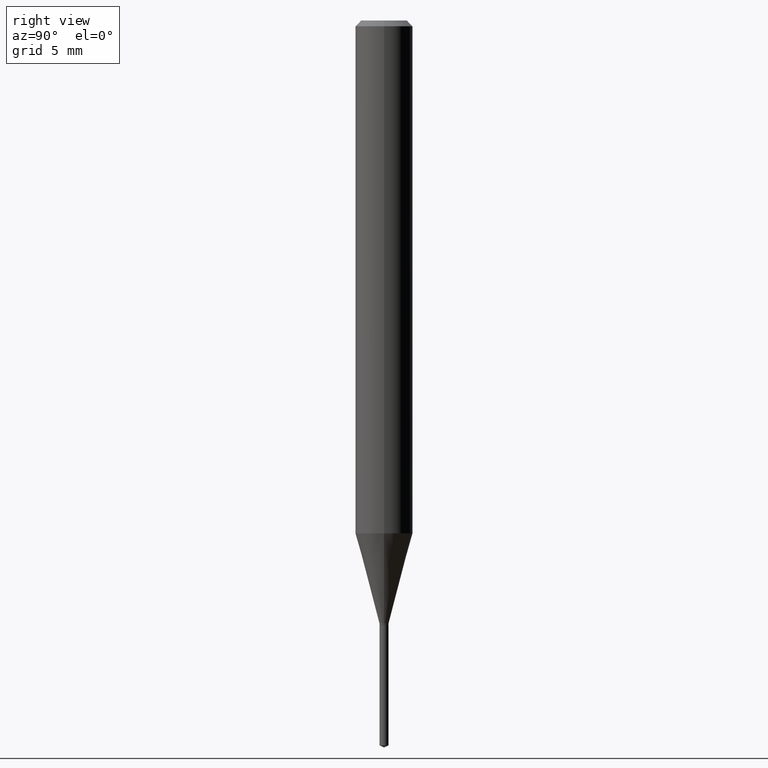
[diagram: clean part render]
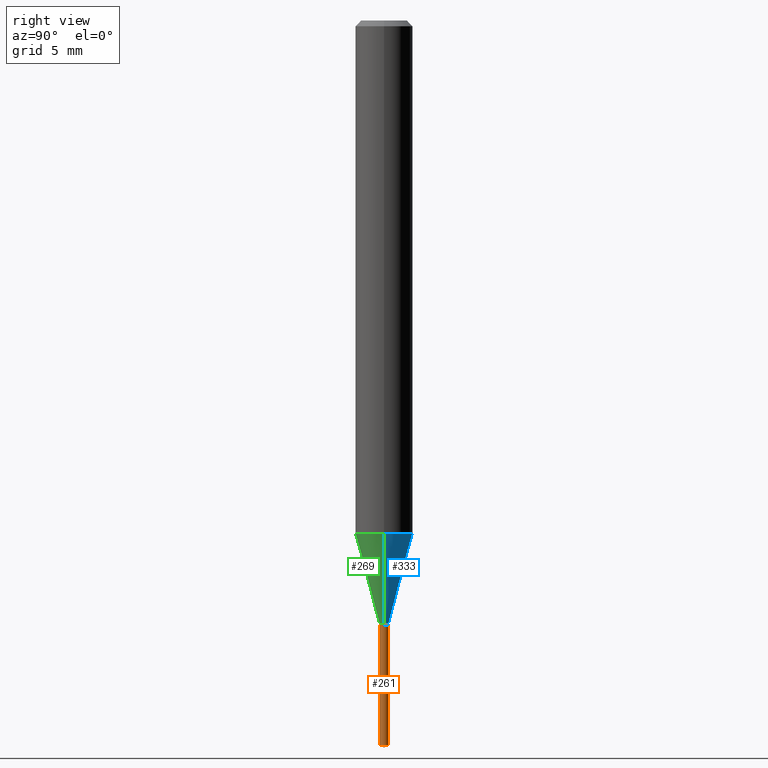
[diagram: same view with three faces highlighted in distinct colors, each labeled with its STEP entity id]
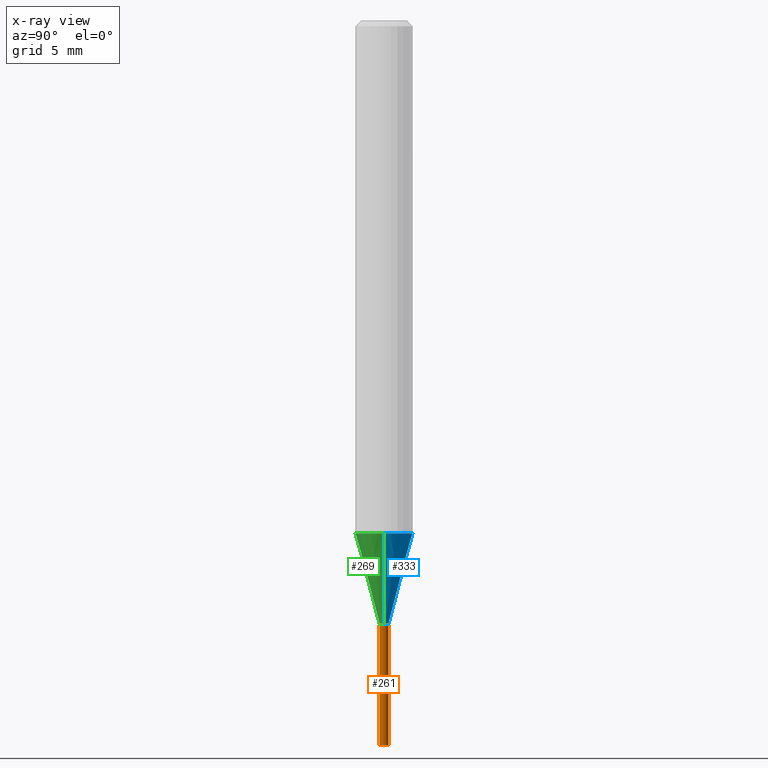
[diagram: x-ray of the same camera — body ghosted, the three highlighted faces saturated]
A machine part, right view with three faces highlighted in distinct colors.
The next image is the same camera in x-ray (body ghosted, the three faces saturated) — at least one of them is partly hidden behind the body in this view.
Their STEP definitions:

[orange] entity #261 — the highlighted cylindrical surface (edge-blend (fillet) strip) has radius 0.235 mm, axis along (-0, 0, 1).
#29 = CARTESIAN_POINT ( 'NONE',  ( -6.459240476856152614E-17, -0.009250000000005217590, -1.491786654162066128 ) ) ;
#48 = VERTEX_POINT ( 'NONE', #79 ) ;
#54 = AXIS2_PLACEMENT_3D ( 'NONE', #396, #140, #134 ) ;
#61 = EDGE_LOOP ( 'NONE', ( #268, #417, #462, #233 ) ) ;
#68 = DIRECTION ( 'NONE',  ( -6.982962677686265133E-15, -1.000000000000000000, 0.000000000000000000 ) ) ;
#71 = CARTESIAN_POINT ( 'NONE',  ( -6.459240476856754120E-17, -0.009250000000004345024, -1.244099999999999984 ) ) ;
#72 = VECTOR ( 'NONE', #168, 39.37007874015748143 ) ;
#79 = CARTESIAN_POINT ( 'NONE',  ( 6.572520305784578573E-17, 0.009249999999995655794, -1.244099999999999984 ) ) ;
#110 = DIRECTION ( 'NONE',  ( -2.433949354103485076E-29, 3.507977849870565923E-15, 1.000000000000000000 ) ) ;
#126 = AXIS2_PLACEMENT_3D ( 'NONE', #258, #110, #68 ) ;
#134 = DIRECTION ( 'NONE',  ( -6.982962677686266711E-15, -1.000000000000000000, 0.000000000000000000 ) ) ;
#140 = DIRECTION ( 'NONE',  ( -2.433949354103485076E-29, 3.507977849870565923E-15, 1.000000000000000000 ) ) ;
#160 = EDGE_CURVE ( 'NONE', #399, #344, #358, .T. ) ;
#164 = CIRCLE ( 'NONE', #343, 0.009249999999999999542 ) ;
#168 = DIRECTION ( 'NONE',  ( -2.433949354103485076E-29, 3.507977849870566318E-15, 1.000000000000000000 ) ) ;
#171 = DIRECTION ( 'NONE',  ( -6.982962677686266711E-15, -1.000000000000000000, 0.000000000000000000 ) ) ;
#213 = VECTOR ( 'NONE', #449, 39.37007874015748143 ) ;
#219 = EDGE_CURVE ( 'NONE', #344, #48, #164, .T. ) ;
#233 = ORIENTED_EDGE ( 'NONE', *, *, #160, .F. ) ;
#258 = CARTESIAN_POINT ( 'NONE',  ( 3.645264513692742757E-29, -5.212631230163837176E-15, -1.491786654162066128 ) ) ;
#261 = ADVANCED_FACE ( 'NONE', ( #320 ), #362, .T. ) ;
#264 = VERTEX_POINT ( 'NONE', #325 ) ;
#268 = ORIENTED_EDGE ( 'NONE', *, *, #394, .T. ) ;
#320 = FACE_OUTER_BOUND ( 'NONE', #61, .T. ) ;
#325 = CARTESIAN_POINT ( 'NONE',  ( 6.572520305784574876E-17, 0.009249999999994791902, -1.491786654162066128 ) ) ;
#343 = AXIS2_PLACEMENT_3D ( 'NONE', #401, #363, #171 ) ;
#344 = VERTEX_POINT ( 'NONE', #71 ) ;
#358 = LINE ( 'NONE', #431, #72 ) ;
#362 = CYLINDRICAL_SURFACE ( 'NONE', #54, 0.009250000000000001277 ) ;
#363 = DIRECTION ( 'NONE',  ( -2.433949354103485076E-29, 3.507977849870565923E-15, 1.000000000000000000 ) ) ;
#369 = EDGE_CURVE ( 'NONE', #264, #48, #370, .T. ) ;
#370 = LINE ( 'NONE', #444, #213 ) ;
#374 = CIRCLE ( 'NONE', #126, 0.009250000000000003011 ) ;
#394 = EDGE_CURVE ( 'NONE', #399, #264, #374, .T. ) ;
#396 = CARTESIAN_POINT ( 'NONE',  ( 3.042407741774928155E-29, -4.343751933654757151E-15, -1.244099999999999984 ) ) ;
#399 = VERTEX_POINT ( 'NONE', #29 ) ;
#401 = CARTESIAN_POINT ( 'NONE',  ( 3.042407741774928155E-29, -4.343751933654757151E-15, -1.244099999999999984 ) ) ;
#417 = ORIENTED_EDGE ( 'NONE', *, *, #369, .T. ) ;
#431 = CARTESIAN_POINT ( 'NONE',  ( -6.459240476856755353E-17, -0.009250000000004346759, -1.244099999999999984 ) ) ;
#444 = CARTESIAN_POINT ( 'NONE',  ( 6.572520305783969671E-17, 0.009249999999995657529, -1.244099999999999984 ) ) ;
#449 = DIRECTION ( 'NONE',  ( -2.433949354103485076E-29, 3.507977849870566318E-15, 1.000000000000000000 ) ) ;
#462 = ORIENTED_EDGE ( 'NONE', *, *, #219, .F. ) ;

[blue] entity #333 — the highlighted conical surface has half-angle 15 deg.
#2 = LINE ( 'NONE', #193, #13 ) ;
#13 = VECTOR ( 'NONE', #376, 39.37007874015748854 ) ;
#16 = ORIENTED_EDGE ( 'NONE', *, *, #22, .F. ) ;
#22 = EDGE_CURVE ( 'NONE', #474, #177, #252, .T. ) ;
#36 = EDGE_CURVE ( 'NONE', #460, #474, #2, .T. ) ;
#46 = CONICAL_SURFACE ( 'NONE', #405, 0.009249999999999999542, 0.2617993877991499074 ) ;
#50 = DIRECTION ( 'NONE',  ( 1.000000000000000000, -6.982962677686264344E-15, 0.000000000000000000 ) ) ;
#82 = VECTOR ( 'NONE', #150, 39.37007874015748854 ) ;
#119 = ORIENTED_EDGE ( 'NONE', *, *, #489, .T. ) ;
#125 = LINE ( 'NONE', #306, #82 ) ;
#131 = CARTESIAN_POINT ( 'NONE',  ( -0.05905000000000013710, -3.265487090077642716E-15, -1.055443869783069699 ) ) ;
#139 = VERTEX_POINT ( 'NONE', #205 ) ;
#150 = DIRECTION ( 'NONE',  ( -0.2588190451025211836, 5.211531920934547886E-15, 0.9659258262890679791 ) ) ;
#172 = AXIS2_PLACEMENT_3D ( 'NONE', #270, #423, #50 ) ;
#177 = VERTEX_POINT ( 'NONE', #131 ) ;
#182 = CIRCLE ( 'NONE', #487, 0.009249999999999999542 ) ;
#193 = CARTESIAN_POINT ( 'NONE',  ( 0.009249999999999999542, -4.398568190674593941E-15, -1.241299999999999848 ) ) ;
#205 = CARTESIAN_POINT ( 'NONE',  ( -0.009249999999999999542, -4.272265786387857456E-15, -1.241299999999999848 ) ) ;
#229 = CARTESIAN_POINT ( 'NONE',  ( 0.05905000000000013710, -4.097406521661357129E-15, -1.055443869783069699 ) ) ;
#252 = CIRCLE ( 'NONE', #172, 0.05905000000000013710 ) ;
#255 = CARTESIAN_POINT ( 'NONE',  ( 3.035560429117610036E-29, -4.333975785905995943E-15, -1.241299999999999848 ) ) ;
#267 = ORIENTED_EDGE ( 'NONE', *, *, #402, .T. ) ;
#270 = CARTESIAN_POINT ( 'NONE',  ( 2.581055060233824275E-29, -3.685062575543982998E-15, -1.055443869783069699 ) ) ;
#274 = EDGE_LOOP ( 'NONE', ( #267, #119, #16, #295 ) ) ;
#295 = ORIENTED_EDGE ( 'NONE', *, *, #36, .F. ) ;
#298 = DIRECTION ( 'NONE',  ( -2.445468806185136597E-29, 3.491481338843145583E-15, 1.000000000000000000 ) ) ;
#306 = CARTESIAN_POINT ( 'NONE',  ( -0.009249999999999999542, -4.268250582848186814E-15, -1.241299999999999848 ) ) ;
#330 = DIRECTION ( 'NONE',  ( 1.000000000000000000, -6.982962677686254089E-15, 0.000000000000000000 ) ) ;
#333 = ADVANCED_FACE ( 'NONE', ( #409 ), #46, .T. ) ;
#334 = DIRECTION ( 'NONE',  ( 1.000000000000000000, -6.982962677686254089E-15, 0.000000000000000000 ) ) ;
#349 = CARTESIAN_POINT ( 'NONE',  ( 0.009249999999999999542, -4.398568190674593941E-15, -1.241299999999999848 ) ) ;
#376 = DIRECTION ( 'NONE',  ( 0.2588190451025211836, 1.565188264969622559E-15, 0.9659258262890679791 ) ) ;
#402 = EDGE_CURVE ( 'NONE', #460, #139, #182, .T. ) ;
#405 = AXIS2_PLACEMENT_3D ( 'NONE', #255, #445, #330 ) ;
#409 = FACE_OUTER_BOUND ( 'NONE', #274, .T. ) ;
#423 = DIRECTION ( 'NONE',  ( -2.445468806185136597E-29, 3.491481338843145583E-15, 1.000000000000000000 ) ) ;
#443 = CARTESIAN_POINT ( 'NONE',  ( 3.035560429117610036E-29, -4.333975785905995943E-15, -1.241299999999999848 ) ) ;
#445 = DIRECTION ( 'NONE',  ( -2.445468806185136597E-29, 3.491481338843145583E-15, 1.000000000000000000 ) ) ;
#460 = VERTEX_POINT ( 'NONE', #349 ) ;
#474 = VERTEX_POINT ( 'NONE', #229 ) ;
#487 = AXIS2_PLACEMENT_3D ( 'NONE', #443, #298, #334 ) ;
#489 = EDGE_CURVE ( 'NONE', #139, #177, #125, .T. ) ;

[green] entity #269 — the highlighted conical surface has half-angle 15 deg.
#2 = LINE ( 'NONE', #193, #13 ) ;
#13 = VECTOR ( 'NONE', #376, 39.37007874015748854 ) ;
#36 = EDGE_CURVE ( 'NONE', #460, #474, #2, .T. ) ;
#41 = DIRECTION ( 'NONE',  ( 1.000000000000000000, -6.982962677686254089E-15, 0.000000000000000000 ) ) ;
#55 = CARTESIAN_POINT ( 'NONE',  ( 3.035560429117610036E-29, -4.333975785905995943E-15, -1.241299999999999848 ) ) ;
#59 = DIRECTION ( 'NONE',  ( -2.445468806185136597E-29, 3.491481338843145583E-15, 1.000000000000000000 ) ) ;
#63 = DIRECTION ( 'NONE',  ( 1.000000000000000000, -6.982962677686264344E-15, 0.000000000000000000 ) ) ;
#67 = CIRCLE ( 'NONE', #335, 0.05905000000000013710 ) ;
#75 = CARTESIAN_POINT ( 'NONE',  ( 3.035560429117610036E-29, -4.333975785905995943E-15, -1.241299999999999848 ) ) ;
#82 = VECTOR ( 'NONE', #150, 39.37007874015748854 ) ;
#84 = ORIENTED_EDGE ( 'NONE', *, *, #36, .T. ) ;
#109 = CIRCLE ( 'NONE', #456, 0.009249999999999999542 ) ;
#123 = ORIENTED_EDGE ( 'NONE', *, *, #135, .F. ) ;
#125 = LINE ( 'NONE', #306, #82 ) ;
#131 = CARTESIAN_POINT ( 'NONE',  ( -0.05905000000000013710, -3.265487090077642716E-15, -1.055443869783069699 ) ) ;
#135 = EDGE_CURVE ( 'NONE', #177, #474, #67, .T. ) ;
#139 = VERTEX_POINT ( 'NONE', #205 ) ;
#150 = DIRECTION ( 'NONE',  ( -0.2588190451025211836, 5.211531920934547886E-15, 0.9659258262890679791 ) ) ;
#169 = ORIENTED_EDGE ( 'NONE', *, *, #459, .T. ) ;
#177 = VERTEX_POINT ( 'NONE', #131 ) ;
#193 = CARTESIAN_POINT ( 'NONE',  ( 0.009249999999999999542, -4.398568190674593941E-15, -1.241299999999999848 ) ) ;
#205 = CARTESIAN_POINT ( 'NONE',  ( -0.009249999999999999542, -4.272265786387857456E-15, -1.241299999999999848 ) ) ;
#206 = ORIENTED_EDGE ( 'NONE', *, *, #489, .F. ) ;
#210 = DIRECTION ( 'NONE',  ( 1.000000000000000000, -6.982962677686254089E-15, 0.000000000000000000 ) ) ;
#229 = CARTESIAN_POINT ( 'NONE',  ( 0.05905000000000013710, -4.097406521661357129E-15, -1.055443869783069699 ) ) ;
#250 = CARTESIAN_POINT ( 'NONE',  ( 2.581055060233824275E-29, -3.685062575543982998E-15, -1.055443869783069699 ) ) ;
#269 = ADVANCED_FACE ( 'NONE', ( #282 ), #391, .T. ) ;
#273 = DIRECTION ( 'NONE',  ( -2.445468806185136597E-29, 3.491481338843145583E-15, 1.000000000000000000 ) ) ;
#282 = FACE_OUTER_BOUND ( 'NONE', #305, .T. ) ;
#305 = EDGE_LOOP ( 'NONE', ( #206, #169, #84, #123 ) ) ;
#306 = CARTESIAN_POINT ( 'NONE',  ( -0.009249999999999999542, -4.268250582848186814E-15, -1.241299999999999848 ) ) ;
#335 = AXIS2_PLACEMENT_3D ( 'NONE', #250, #436, #63 ) ;
#349 = CARTESIAN_POINT ( 'NONE',  ( 0.009249999999999999542, -4.398568190674593941E-15, -1.241299999999999848 ) ) ;
#376 = DIRECTION ( 'NONE',  ( 0.2588190451025211836, 1.565188264969622559E-15, 0.9659258262890679791 ) ) ;
#391 = CONICAL_SURFACE ( 'NONE', #454, 0.009249999999999999542, 0.2617993877991499074 ) ;
#436 = DIRECTION ( 'NONE',  ( -2.445468806185136597E-29, 3.491481338843145583E-15, 1.000000000000000000 ) ) ;
#454 = AXIS2_PLACEMENT_3D ( 'NONE', #55, #59, #210 ) ;
#456 = AXIS2_PLACEMENT_3D ( 'NONE', #75, #273, #41 ) ;
#459 = EDGE_CURVE ( 'NONE', #139, #460, #109, .T. ) ;
#460 = VERTEX_POINT ( 'NONE', #349 ) ;
#474 = VERTEX_POINT ( 'NONE', #229 ) ;
#489 = EDGE_CURVE ( 'NONE', #139, #177, #125, .T. ) ;